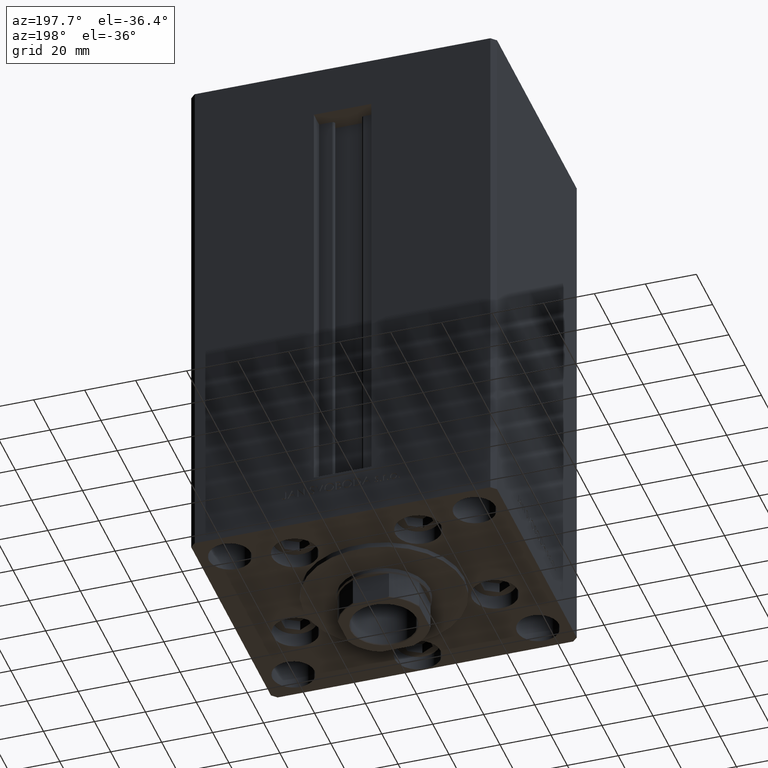
[diagram: clean part render]
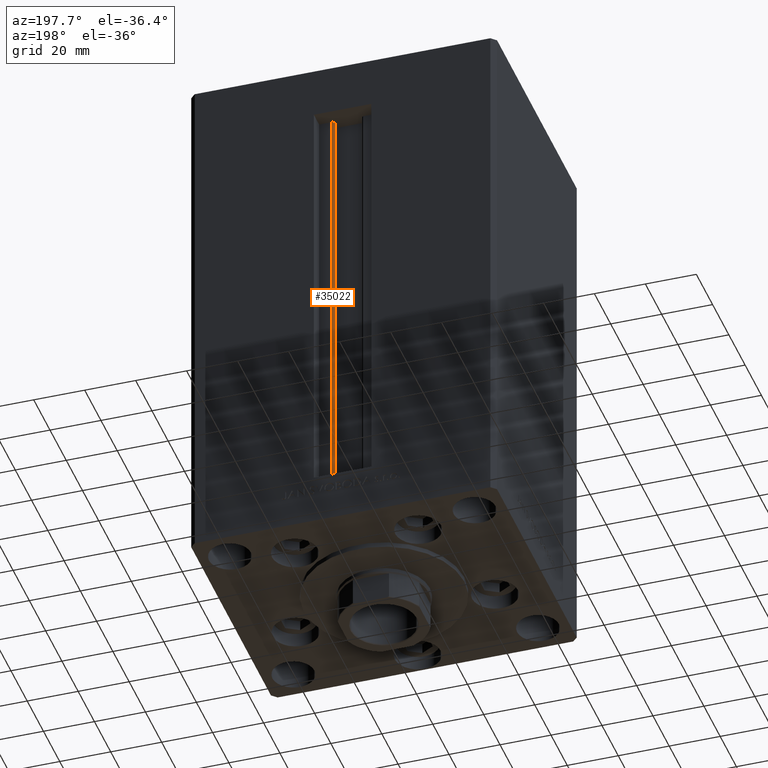
[diagram: same view with one face highlighted and labeled with its STEP entity id]
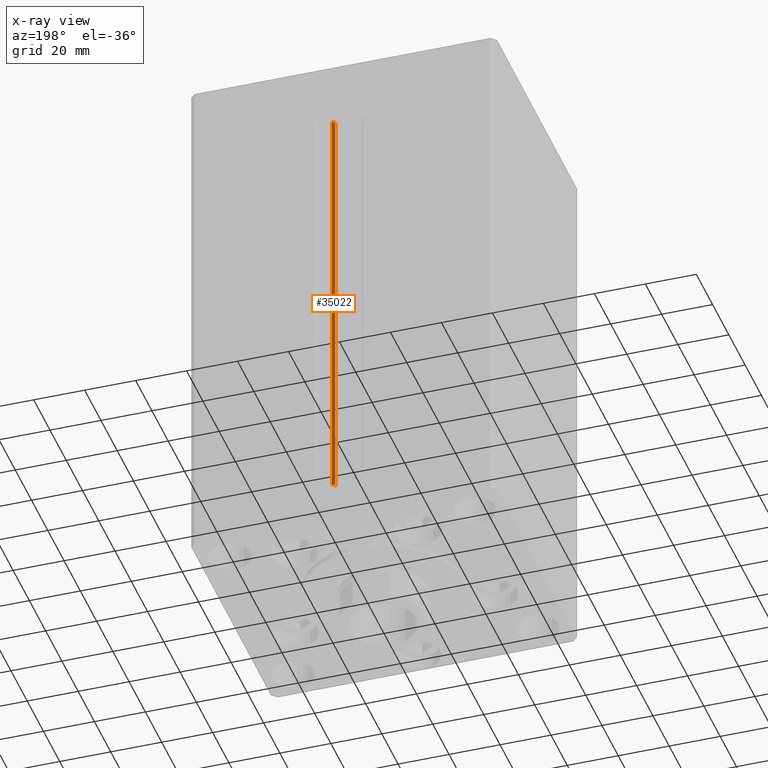
[diagram: x-ray of the same camera — body ghosted, the highlighted face saturated]
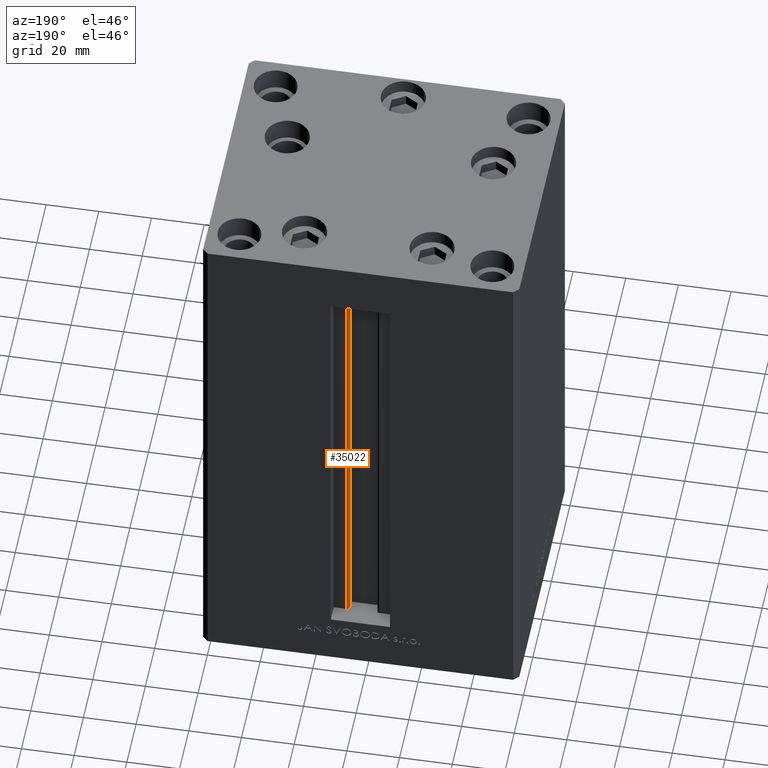
[diagram: same view with one face highlighted and labeled with its STEP entity id]
A machine part, auxiliary view. The second image highlights one B-rep face of the part: STEP entity #35022.
The next image is the same camera in x-ray: the body ghosted, the highlighted face saturated — about 0% of this face is hidden behind the body in this view.
A second angle (auxiliary view) of the same face is appended — the face is thin or edge-on in the first view.
In plain terms, the highlighted cylindrical surface (edge-blend (fillet) strip) has radius 0.9333 mm, axis along (0, 0, 1).
Its self-contained STEP definition (entity closure, byte-faithful):
#833 = ORIENTED_EDGE ( 'NONE', *, *, #3322, .T. ) ;
#2447 = CARTESIAN_POINT ( 'NONE',  ( 6.183333333334001480, 44.50000000000000000, 168.5000000000000000 ) ) ;
#3072 = ORIENTED_EDGE ( 'NONE', *, *, #34036, .F. ) ;
#3322 = EDGE_CURVE ( 'NONE', #18295, #43923, #5591, .T. ) ;
#4461 = VECTOR ( 'NONE', #44423, 1000.000000000000000 ) ;
#4727 = DIRECTION ( 'NONE',  ( 1.000000000000000000, 0.000000000000000000, 0.000000000000000000 ) ) ;
#5591 = LINE ( 'NONE', #36408, #12457 ) ;
#11407 = CIRCLE ( 'NONE', #22525, 0.9333333333340068094 ) ;
#12457 = VECTOR ( 'NONE', #44091, 1000.000000000000000 ) ;
#12998 = VERTEX_POINT ( 'NONE', #2447 ) ;
#13272 = CIRCLE ( 'NONE', #15698, 0.9333333333340068094 ) ;
#15698 = AXIS2_PLACEMENT_3D ( 'NONE', #42746, #23877, #4727 ) ;
#15791 = EDGE_CURVE ( 'NONE', #43923, #12998, #11407, .T. ) ;
#18295 = VERTEX_POINT ( 'NONE', #39689 ) ;
#22525 = AXIS2_PLACEMENT_3D ( 'NONE', #36131, #47067, #31423 ) ;
#23877 = DIRECTION ( 'NONE',  ( -0.000000000000000000, -0.000000000000000000, -1.000000000000000000 ) ) ;
#24348 = AXIS2_PLACEMENT_3D ( 'NONE', #26013, #34182, #37417 ) ;
#25375 = CARTESIAN_POINT ( 'NONE',  ( 6.183333333334001480, 44.50000000000000000, 0.000000000000000000 ) ) ;
#26013 = CARTESIAN_POINT ( 'NONE',  ( 6.183333333334001480, 43.56666666666598786, 0.000000000000000000 ) ) ;
#29291 = LINE ( 'NONE', #36965, #4461 ) ;
#30460 = CYLINDRICAL_SURFACE ( 'NONE', #24348, 0.9333333333340068094 ) ;
#31423 = DIRECTION ( 'NONE',  ( 1.000000000000000000, 0.000000000000000000, 0.000000000000000000 ) ) ;
#34036 = EDGE_CURVE ( 'NONE', #45763, #12998, #29291, .T. ) ;
#34182 = DIRECTION ( 'NONE',  ( -0.000000000000000000, -0.000000000000000000, 1.000000000000000000 ) ) ;
#35022 = ADVANCED_FACE ( 'NONE', ( #37908 ), #30460, .T. ) ;
#35980 = ORIENTED_EDGE ( 'NONE', *, *, #15791, .T. ) ;
#36032 = CARTESIAN_POINT ( 'NONE',  ( 5.375042956467941835, 43.09999999999898534, 168.5000000000000000 ) ) ;
#36131 = CARTESIAN_POINT ( 'NONE',  ( 6.183333333334001480, 43.56666666666598786, 168.5000000000000000 ) ) ;
#36408 = CARTESIAN_POINT ( 'NONE',  ( 5.375042956467942723, 43.09999999999898534, 0.000000000000000000 ) ) ;
#36729 = EDGE_CURVE ( 'NONE', #18295, #45763, #13272, .T. ) ;
#36965 = CARTESIAN_POINT ( 'NONE',  ( 6.183333333334001480, 44.50000000000000000, 0.000000000000000000 ) ) ;
#37417 = DIRECTION ( 'NONE',  ( 1.000000000000000000, 0.000000000000000000, 0.000000000000000000 ) ) ;
#37908 = FACE_OUTER_BOUND ( 'NONE', #41273, .T. ) ;
#39689 = CARTESIAN_POINT ( 'NONE',  ( 5.375042956467942723, 43.09999999999898534, 0.000000000000000000 ) ) ;
#41273 = EDGE_LOOP ( 'NONE', ( #3072, #45649, #833, #35980 ) ) ;
#42746 = CARTESIAN_POINT ( 'NONE',  ( 6.183333333334001480, 43.56666666666598786, 0.000000000000000000 ) ) ;
#43923 = VERTEX_POINT ( 'NONE', #36032 ) ;
#44091 = DIRECTION ( 'NONE',  ( -0.000000000000000000, -0.000000000000000000, 1.000000000000000000 ) ) ;
#44423 = DIRECTION ( 'NONE',  ( -0.000000000000000000, -0.000000000000000000, 1.000000000000000000 ) ) ;
#45649 = ORIENTED_EDGE ( 'NONE', *, *, #36729, .F. ) ;
#45763 = VERTEX_POINT ( 'NONE', #25375 ) ;
#47067 = DIRECTION ( 'NONE',  ( 0.000000000000000000, 0.000000000000000000, -1.000000000000000000 ) ) ;